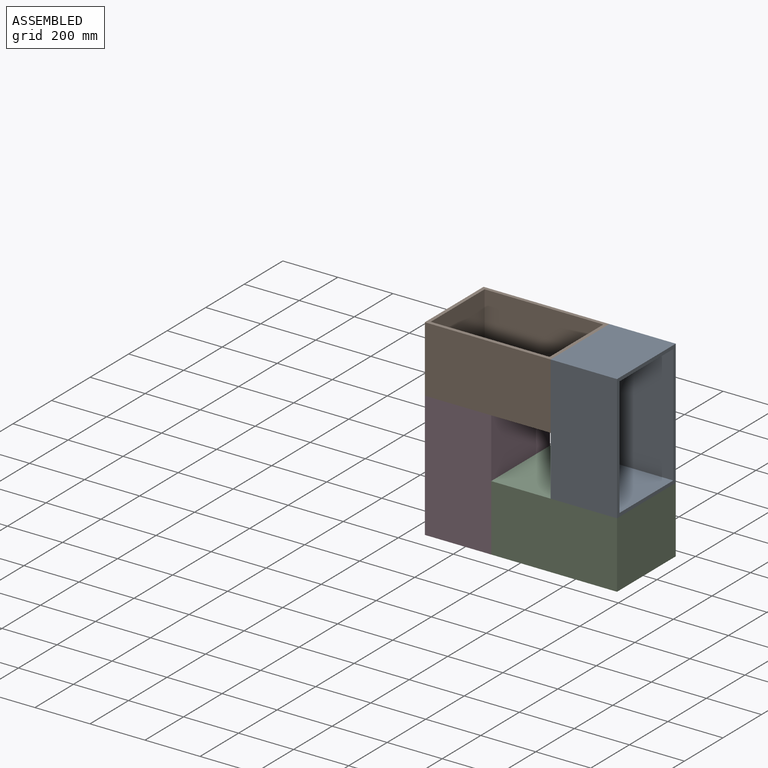
[diagram: assembled view]
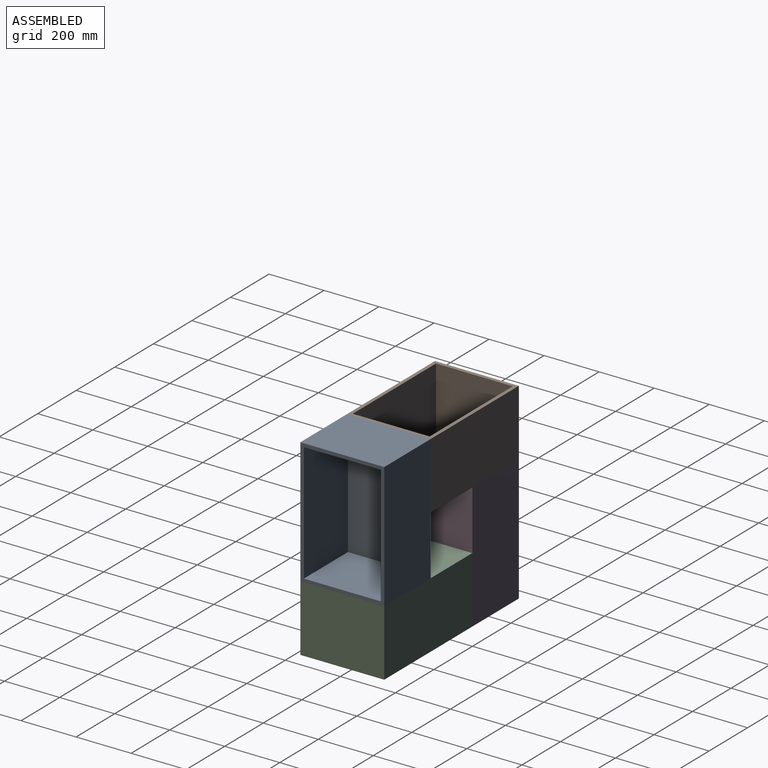
[diagram: assembled view, second angle]
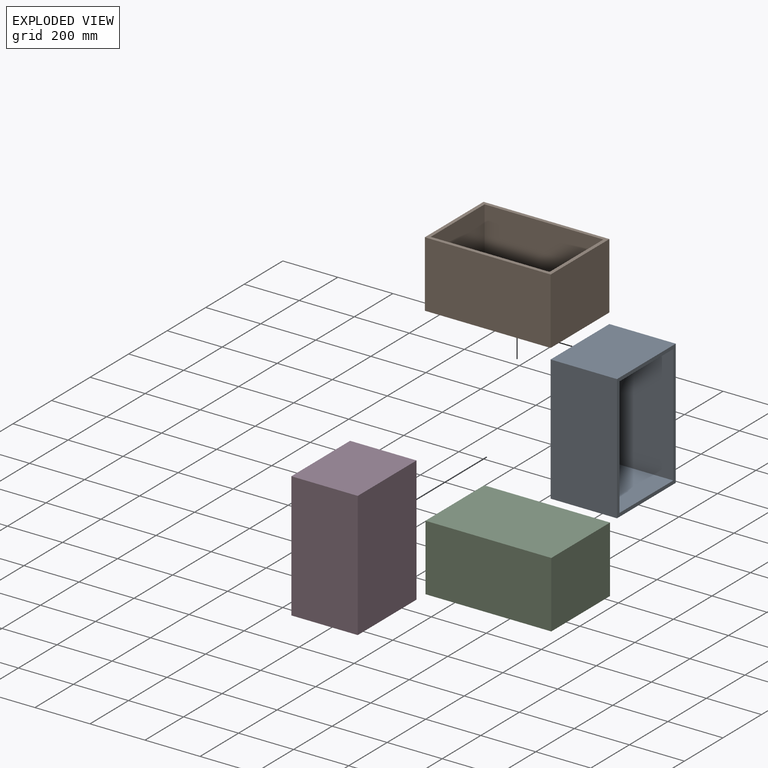
[diagram: exploded view]
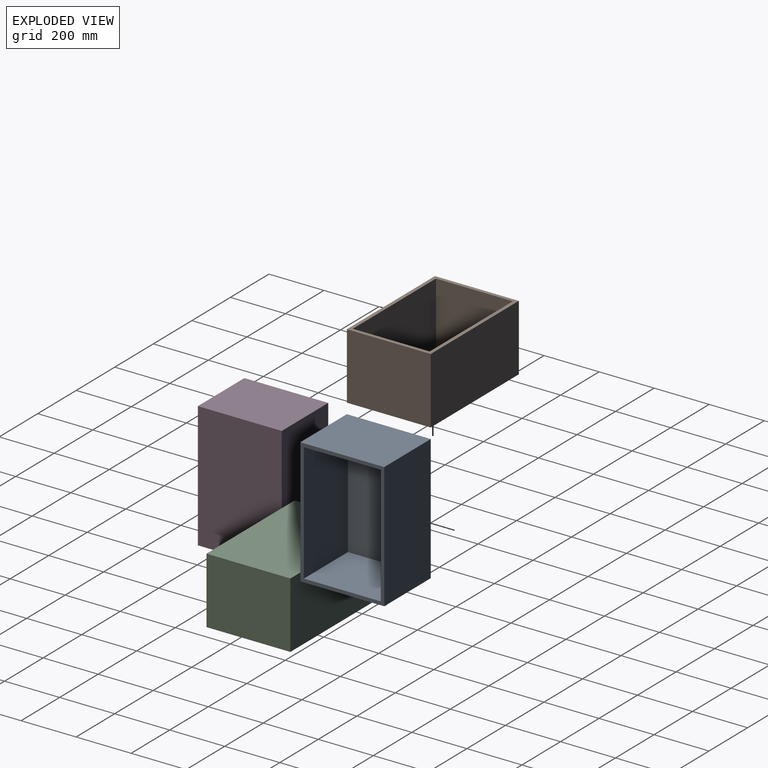
[diagram: exploded view, second angle]
ASSEMBLY  parts=4 mates=9
PART A: 11 faces, bbox 457.2x304.8x241.3 mm
  f0: plane 457.2x304.8mm, normal (0,0,1), area 18709.6mm2, adj f1,f3,f4,f5,f6,f7,f8,f9
  f1: plane 457.2x241.3mm, normal (0,-1,0), area 110322.4mm2, adj f0,f2,f4,f5
  f2: plane 457.2x304.8mm, normal (0,0,-1), area 139354.6mm2, adj f1,f3,f4,f5
  f3: plane 457.2x241.3mm, normal (0,1,0), area 110322.4mm2, adj f0,f2,f4,f5
  f4: plane 304.8x241.3mm, normal (1,0,0), area 73548.2mm2, adj f0,f1,f2,f3
  f5: plane 304.8x241.3mm, normal (-1,0,0), area 73548.2mm2, adj f0,f1,f2,f3
  f6: plane 431.8x228.6mm, normal (0,-1,0), area 98709.5mm2, adj f0,f7,f9,f10
  f7: plane 279.4x228.6mm, normal (1,0,0), area 63870.8mm2, adj f0,f6,f8,f10
  f8: plane 431.8x228.6mm, normal (0,1,0), area 98709.5mm2, adj f0,f7,f9,f10
  f9: plane 279.4x228.6mm, normal (-1,0,0), area 63870.8mm2, adj f0,f6,f8,f10
  f10: plane 431.8x279.4mm, normal (0,0,1), area 120644.9mm2, adj f6,f7,f8,f9
PART B: same geometry as A
PART C: same geometry as A
PART D: same geometry as A
PLACE A rot(axis=(0,1,0),90deg) t=(-349.74,586.95,-744.01)mm
PLACE B t=(-698.99,586.95,-636.06)mm
PLACE C rot(axis=(0,-1,0),180deg) t=(-457.69,586.95,-1093.26)mm
PLACE D rot(axis=(0,-1,0),90deg) t=(-806.94,586.95,-985.31)mm
MATE planar A.f1 <-> C.f1  axis (0,-1,0) through (-349.74,434.55,-744.01)mm
MATE planar D.f3 <-> C.f3  axis (0,1,0) through (-806.94,739.35,-985.31)mm
MATE planar A.f5 <-> B.f0  axis (0,0,1) through (-349.74,586.95,-515.41)mm
MATE planar A.f0 <-> C.f5  axis (1,0,0) through (-229.09,586.95,-744.01)mm
MATE planar A.f2 <-> B.f4  axis (-1,0,0) through (-470.39,586.95,-744.01)mm
MATE planar D.f5 <-> C.f0  axis (0,0,-1) through (-806.94,586.95,-1213.91)mm
MATE planar A.f1 <-> B.f1  axis (0,-1,0) through (-349.74,434.55,-744.01)mm
MATE planar C.f4 <-> D.f2  axis (-1,0,0) through (-686.29,586.95,-1093.26)mm
MATE planar C.f2 <-> A.f4  axis (0,0,1) through (-457.69,586.95,-972.61)mm
